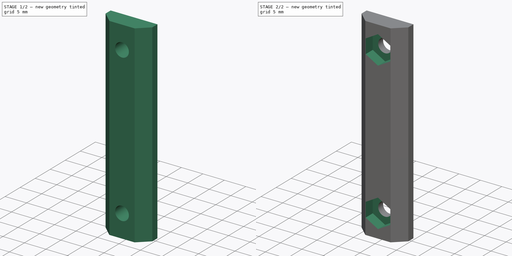
[diagram: build sequence overview — one tinted view per stage of 2, left to right]
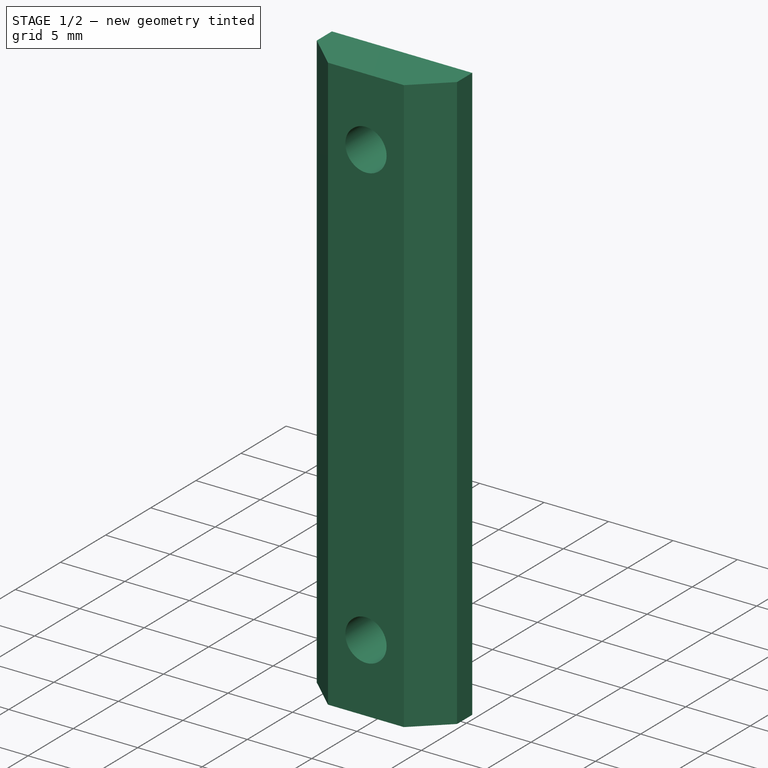
[diagram: stage 1 of 2 — iso view after this stage's code; geometry added in this stage tinted green]
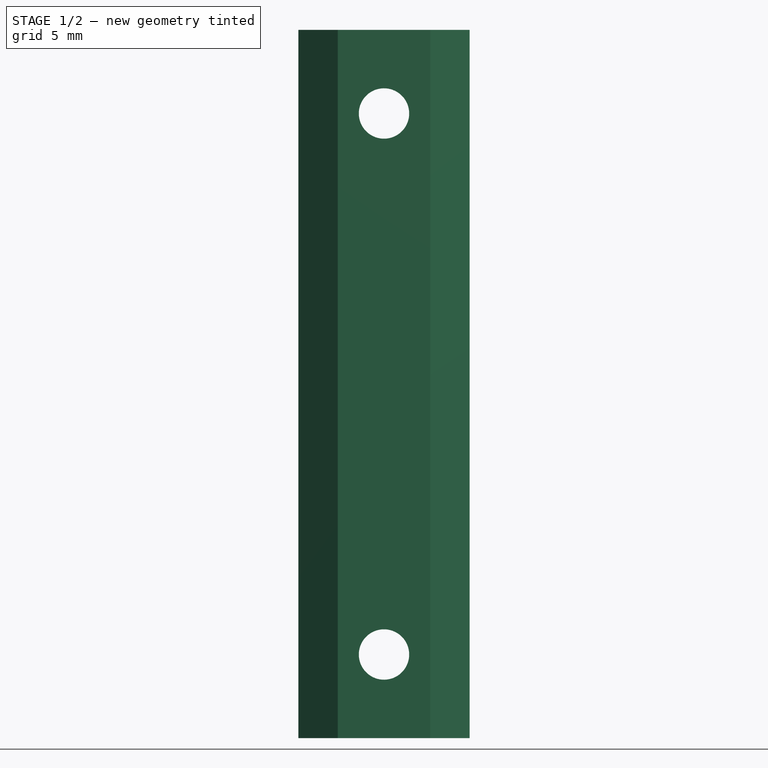
[diagram: stage 1 of 2 — front view after this stage's code; geometry added in this stage tinted green]
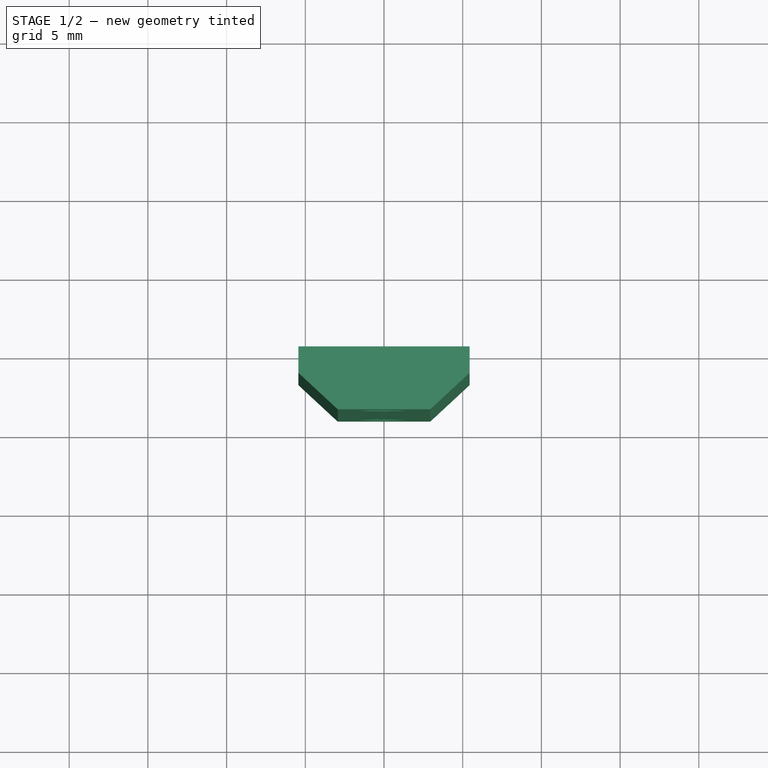
[diagram: stage 1 of 2 — top view after this stage's code; geometry added in this stage tinted green]
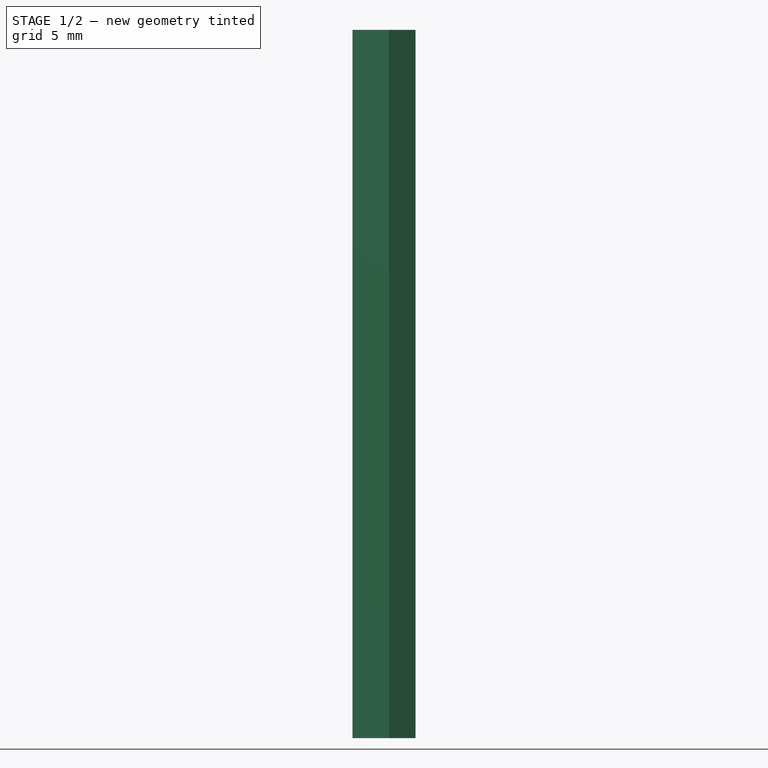
[diagram: stage 1 of 2 — right view after this stage's code; geometry added in this stage tinted green]
FCSTD DOCUMENT  (FreeCAD 0.20R29603 (Git))
Label: trem-45-P2
License: All rights reserved
LicenseURL: http://en.wikipedia.org/wiki/All_rights_reserved
objects: Sketcher::SketchObject×4, PartDesign::Pocket×2, PartDesign::Pad×1, PartDesign::Body×1
note: 11 computed .brp shape members not serialized (recipe doc carries the construction recipe); baked Part::Feature solids carry a one-line shape summary decoded from their .brp

FEATURE [Sketcher::SketchObject] Sketch
  FullyConstrained = true
  MapMode = 5
  Support = -> [XY_Plane]
  sketch-geometry (8):
    g0: LineSegment StartX=0 StartY=0 StartZ=0 EndX=-5.44 EndY=0 EndZ=0
    g1: LineSegment StartX=-5.44 StartY=0 StartZ=0 EndX=-5.44 EndY=-1.68 EndZ=0
    g2: LineSegment StartX=-5.44 StartY=-1.68 StartZ=0 EndX=-2.94 EndY=-4 EndZ=0
    g3: LineSegment StartX=-2.94 StartY=-4 StartZ=0 EndX=0 EndY=-4 EndZ=0
    g4: LineSegment StartX=0 StartY=-4 StartZ=0 EndX=2.94 EndY=-4 EndZ=0
    g5: LineSegment StartX=2.94 StartY=-4 StartZ=0 EndX=5.44 EndY=-1.68 EndZ=0
    g6: LineSegment StartX=5.44 StartY=-1.68 StartZ=0 EndX=5.44 EndY=0 EndZ=0
    g7: LineSegment StartX=5.44 StartY=0 StartZ=0 EndX=0 EndY=0 EndZ=0
  constraints (23):
    c: Horizontal(g0)
    c: Coincident(g0,g1)
    c: Vertical(g1)
    c: Coincident(g1,g2)
    c: Coincident(g2,g3)
    c: PointOnObject(g3,g-2)
    c: Coincident(g3,g4)
    c: Horizontal(g4)
    c: Coincident(g4,g5)
    c: Coincident(g5,g6)
    c: Vertical(g6)
    c: Coincident(g6,g7)
    c: Horizontal(g7)
    c: Coincident(g7,g0)
    c: Horizontal(g3)
    c: Equal(g3,g4)
    c: Equal(g0,g7)
    c: Equal(g1,g6)
    c: DistanceY(g1,g1) = 1.68
    c: DistanceX(g0,g6) = 10.88
    c: DistanceX(g2,g4) = 5.88
    c: DistanceY(g4,g6) = 4
    c: Coincident(g0,g-1)
FEATURE [PartDesign::Pad] Pad
  Direction = (1,1,1)
  Length = 45
  Length2 = 100
  Profile = -> Sketch
  Type = 0
FEATURE [Sketcher::SketchObject] Sketch001
  ExternalGeometry = -> [Pad]
  FullyConstrained = true
  MapMode = 5
  Placement = pos=(0,-4,0) rot=(1,0,0;1.5708rad)
  Support = -> [Pad]
  sketch-geometry (13):
    g0: LineSegment StartX=0 StartY=45 StartZ=0 EndX=0 EndY=22.5 EndZ=0
    g1: LineSegment StartX=0 StartY=22.5 StartZ=0 EndX=0 EndY=0 EndZ=0
    g2: LineSegment StartX=0 StartY=22.5 StartZ=0 EndX=0 EndY=39.686 EndZ=0
    g3: LineSegment StartX=0 StartY=22.5 StartZ=0 EndX=0 EndY=5.31399 EndZ=0
    g4: Circle CenterX=0 CenterY=39.686 CenterZ=0 NormalX=0 NormalY=0 NormalZ=1 AngleXU=0 Radius=1.6
    g5: Circle CenterX=0 CenterY=5.31399 CenterZ=0 NormalX=0 NormalY=0 NormalZ=1 AngleXU=0 Radius=1.6
    g6: LineSegment StartX=0 StartY=43 StartZ=0 EndX=-2.87 EndY=41.343 EndZ=0
    g7: LineSegment StartX=-2.87 StartY=41.343 StartZ=0 EndX=-2.87 EndY=38.029 EndZ=0
    g8: LineSegment StartX=-2.87 StartY=38.029 StartZ=0 EndX=-4e-16 EndY=36.372 EndZ=0
    g9: LineSegment StartX=-4e-16 StartY=36.372 StartZ=0 EndX=2.87 EndY=38.029 EndZ=0
    g10: LineSegment StartX=2.87 StartY=38.029 StartZ=0 EndX=2.87 EndY=41.343 EndZ=0
    g11: LineSegment StartX=2.87 StartY=41.343 StartZ=0 EndX=0 EndY=43 EndZ=0
    g12: Circle CenterX=0 CenterY=39.686 CenterZ=0 NormalX=0 NormalY=0 NormalZ=1 AngleXU=0 Radius=3.31399
  constraints (32):
    c: Coincident(g0,g-3)
    c: Coincident(g1,g0)
    c: Coincident(g1,g-1)
    c: Equal(g1,g0)
    c: Vertical(g1)
    c: Coincident(g2,g0)
    c: Coincident(g3,g0)
    c: Coincident(g4,g2)
    c: Coincident(g5,g3)
    c: Equal(g3,g2)
    c: Vertical(g3)
    c: Vertical(g2)
    c: Equal(g5,g4)
    c: Coincident(g6,g7)
    c: Coincident(g7,g8)
    c: Coincident(g8,g9)
    c: Coincident(g9,g10)
    c: Coincident(g10,g11)
    c: Coincident(g11,g6)
    c: Equal(g6, g7-g11) x5
    c: PointOnObject(g6,g12)
    c: PointOnObject(g7,g12)
    c: PointOnObject(g8,g12)
    c: PointOnObject(g9,g12)
    c: PointOnObject(g10,g12)
    c: PointOnObject(g11,g12)
    c: PointOnObject(g11,g0)
    c: Coincident(g4,g12)
    c: DistanceX(g6,g10) = 5.74
    c: DistanceY(g6,g0) = 2
    c: DistanceY(g5,g4) = 34.372
    c: Radius(g5) = 1.6
FEATURE [PartDesign::Pocket] Pocket
  BaseFeature = -> Pad
  Direction = (1,1,1)
  Length = 5
  Length2 = 100
  Profile = -> Sketch001
  Type = 1
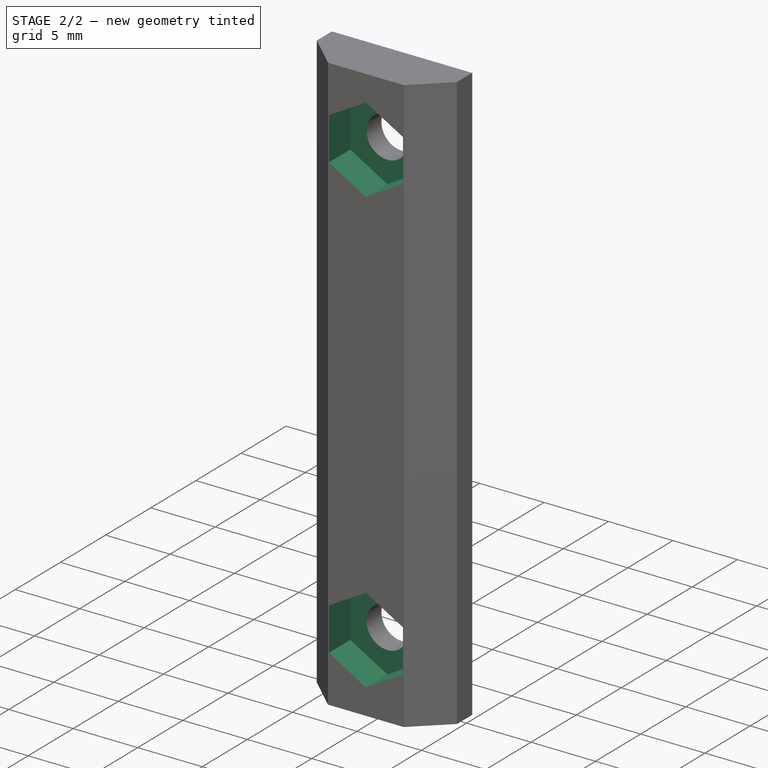
[diagram: stage 2 of 2 — iso view after this stage's code; geometry added in this stage tinted green]
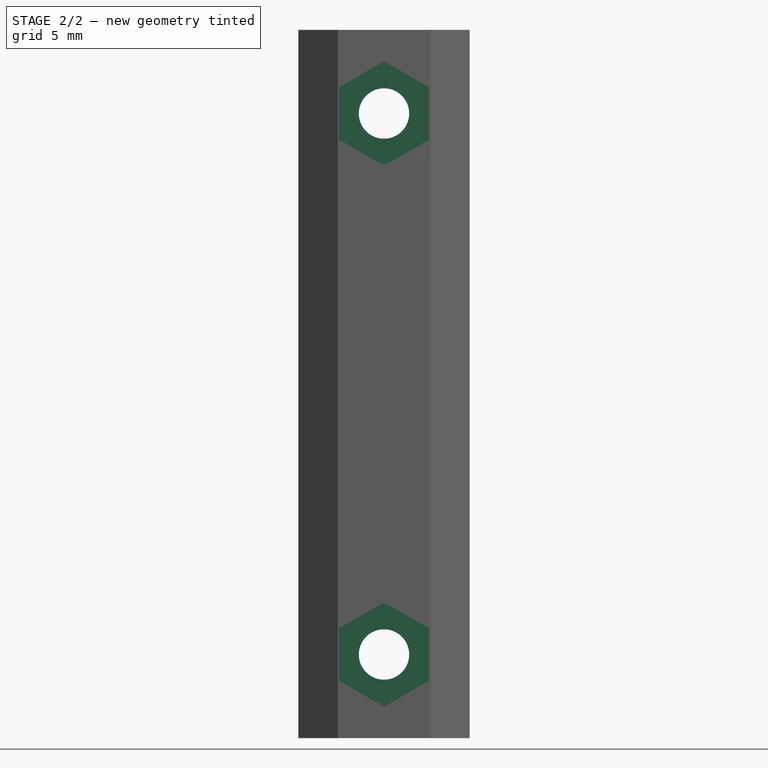
[diagram: stage 2 of 2 — front view after this stage's code; geometry added in this stage tinted green]
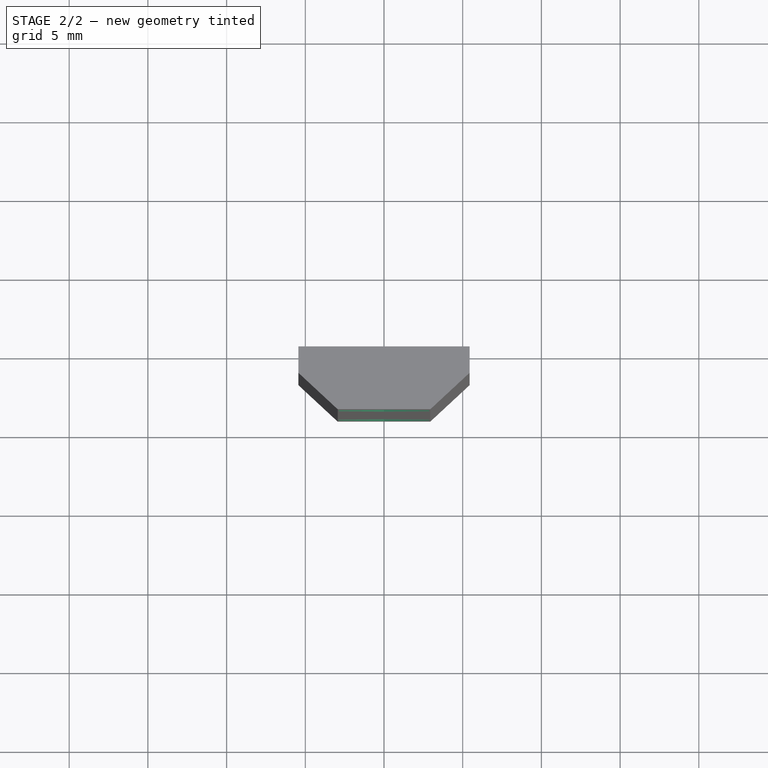
[diagram: stage 2 of 2 — top view after this stage's code; geometry added in this stage tinted green]
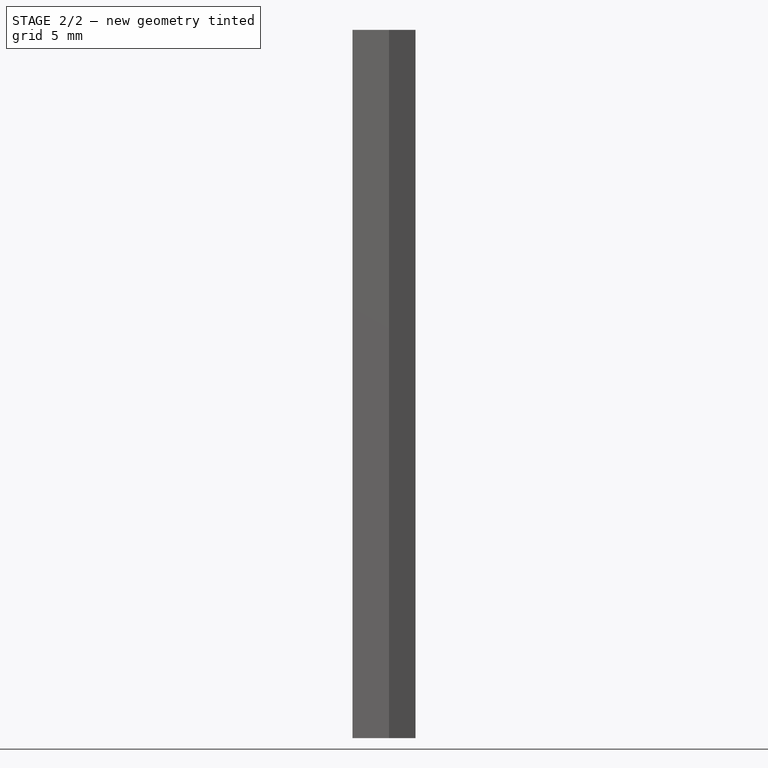
[diagram: stage 2 of 2 — right view after this stage's code; geometry added in this stage tinted green]
FEATURE [Sketcher::SketchObject] Sketch002
  ExternalGeometry = -> [Pocket]
  FullyConstrained = true
  MapMode = 5
  Placement = pos=(0,-4,0) rot=(1,0,0;1.5708rad)
  Support = -> [Pocket]
  sketch-geometry (14):
    g0: LineSegment StartX=2.87 StartY=41.343 StartZ=0 EndX=4e-16 EndY=43 EndZ=0
    g1: LineSegment StartX=4e-16 StartY=43 StartZ=0 EndX=-2.87 EndY=41.343 EndZ=0
    g2: LineSegment StartX=-2.87 StartY=41.343 StartZ=0 EndX=-2.87 EndY=38.029 EndZ=0
    g3: LineSegment StartX=-2.87 StartY=38.029 StartZ=0 EndX=-4e-16 EndY=36.372 EndZ=0
    g4: LineSegment StartX=-3e-16 StartY=36.372 StartZ=0 EndX=2.87 EndY=38.029 EndZ=0
    g5: LineSegment StartX=2.87 StartY=38.029 StartZ=0 EndX=2.87 EndY=41.343 EndZ=0
    g6: Circle CenterX=0 CenterY=39.686 CenterZ=0 NormalX=0 NormalY=0 NormalZ=1 AngleXU=0 Radius=3.31399
    g7: LineSegment StartX=2.87 StartY=6.97099 StartZ=0 EndX=-4e-16 EndY=8.62798 EndZ=0
    g8: LineSegment StartX=-4e-16 StartY=8.62798 StartZ=0 EndX=-2.87 EndY=6.97099 EndZ=0
    g9: LineSegment StartX=-2.87 StartY=6.97099 StartZ=0 EndX=-2.87 EndY=3.657 EndZ=0
    g10: LineSegment StartX=-2.87 StartY=3.657 StartZ=0 EndX=0 EndY=2 EndZ=0
    g11: LineSegment StartX=0 StartY=2 StartZ=0 EndX=2.87 EndY=3.657 EndZ=0
    g12: LineSegment StartX=2.87 StartY=3.657 StartZ=0 EndX=2.87 EndY=6.97099 EndZ=0
    g13: Circle CenterX=0 CenterY=5.31399 CenterZ=0 NormalX=0 NormalY=0 NormalZ=1 AngleXU=0 Radius=3.31399
  constraints (32):
    c: Coincident(g0,g1)
    c: Coincident(g1,g2)
    c: Coincident(g2,g3)
    c: Coincident(g3,g4)
    c: Coincident(g4,g5)
    c: Coincident(g5,g0)
    c: Equal(g0, g1-g5) x5
    c: PointOnObject(g0,g6)
    c: PointOnObject(g1,g6)
    c: PointOnObject(g2,g6)
    c: PointOnObject(g3,g6)
    c: PointOnObject(g4,g6)
    c: PointOnObject(g5,g6)
    c: Coincident(g6,g-3)
    c: Coincident(g7,g8)
    c: Coincident(g8,g9)
    c: Coincident(g9,g10)
    c: Coincident(g10,g11)
    c: Coincident(g11,g12)
    c: Coincident(g12,g7)
    c: Equal(g7, g8-g12) x5
    c: PointOnObject(g7,g13)
    c: PointOnObject(g8,g13)
    c: PointOnObject(g9,g13)
    c: PointOnObject(g10,g13)
    c: PointOnObject(g11,g13)
    c: PointOnObject(g12,g13)
    c: Coincident(g13,g-4)
    c: Equal(g6,g13)
    c: Vertical(g9)
    c: Vertical(g2)
    c: DistanceX(g1,g0) = 5.74
FEATURE [PartDesign::Pocket] Pocket001
  BaseFeature = -> Pocket
  Direction = (1,1,1)
  Length = 2.36
  Length2 = 100
  Profile = -> Sketch002
  Type = 0
FEATURE [Sketcher::SketchObject] Sketch003
  ExternalGeometry = -> [Pocket001]
  FullyConstrained = true
  MapMode = 5
  Placement = pos=(0,0,0) rot=(0,0.707107,0.707107;3.14159rad)
  Support = -> [Pocket001]
  sketch-geometry (4):
    g0: Circle CenterX=0 CenterY=39.686 CenterZ=0 NormalX=0 NormalY=0 NormalZ=1 AngleXU=0 Radius=11.05
    g1: Circle CenterX=0 CenterY=5.31399 CenterZ=0 NormalX=0 NormalY=0 NormalZ=1 AngleXU=0 Radius=11.05
    g2: GeomPoint X=0 Y=16.364 Z=0
    g3: GeomPoint X=0 Y=28.636 Z=0
  constraints (10):
    c: DistanceY(g-4,g-3) = 34.372
    c: Coincident(g0,g-3)
    c: Coincident(g1,g-4)
    c: Equal(g0,g1)
    c: Diameter(g0) = 22.1
    c: PointOnObject(g2,g1)
    c: PointOnObject(g2,g-2)
    c: PointOnObject(g3,g0)
    c: PointOnObject(g3,g-2)
    c: DistanceY(g2,g3) = 12.272
FEATURE [PartDesign::Body] Body
  Group = -> [Sketch,Pad,Sketch001,Pocket,Sketch002,Pocket001,Sketch003]
  Origin = -> Origin
  Tip = -> Pocket001
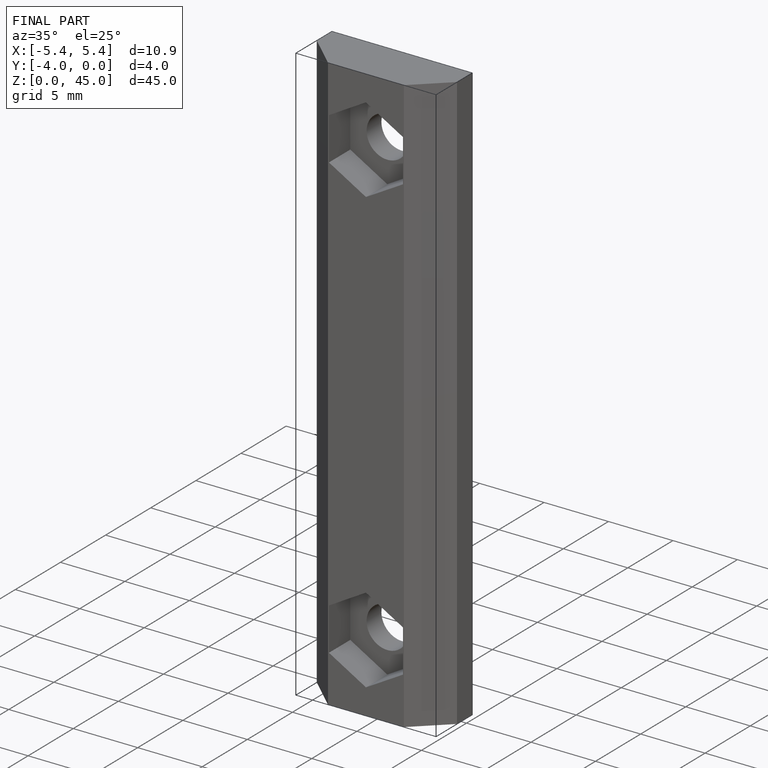
[diagram: finished part — iso view with bounding-box wireframe]
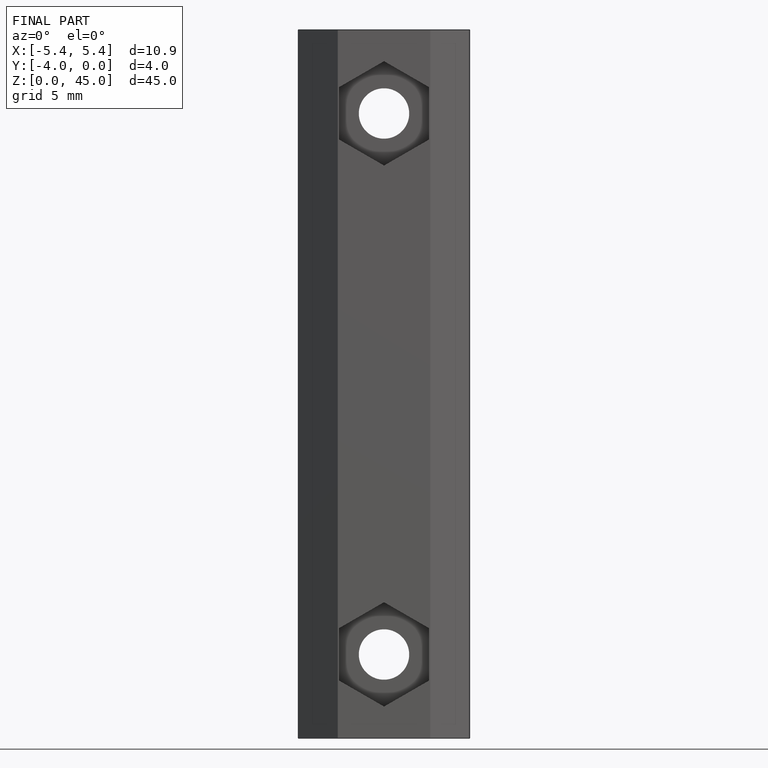
[diagram: finished part — front view with bounding-box wireframe]
